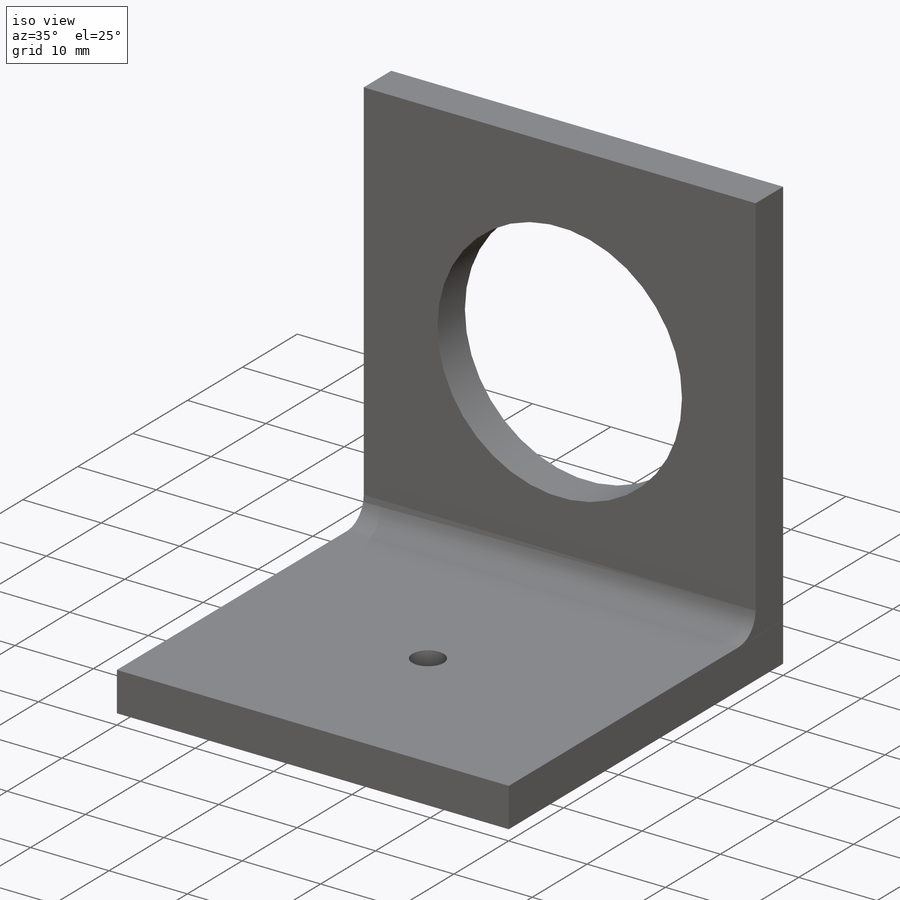
[diagram: iso view]
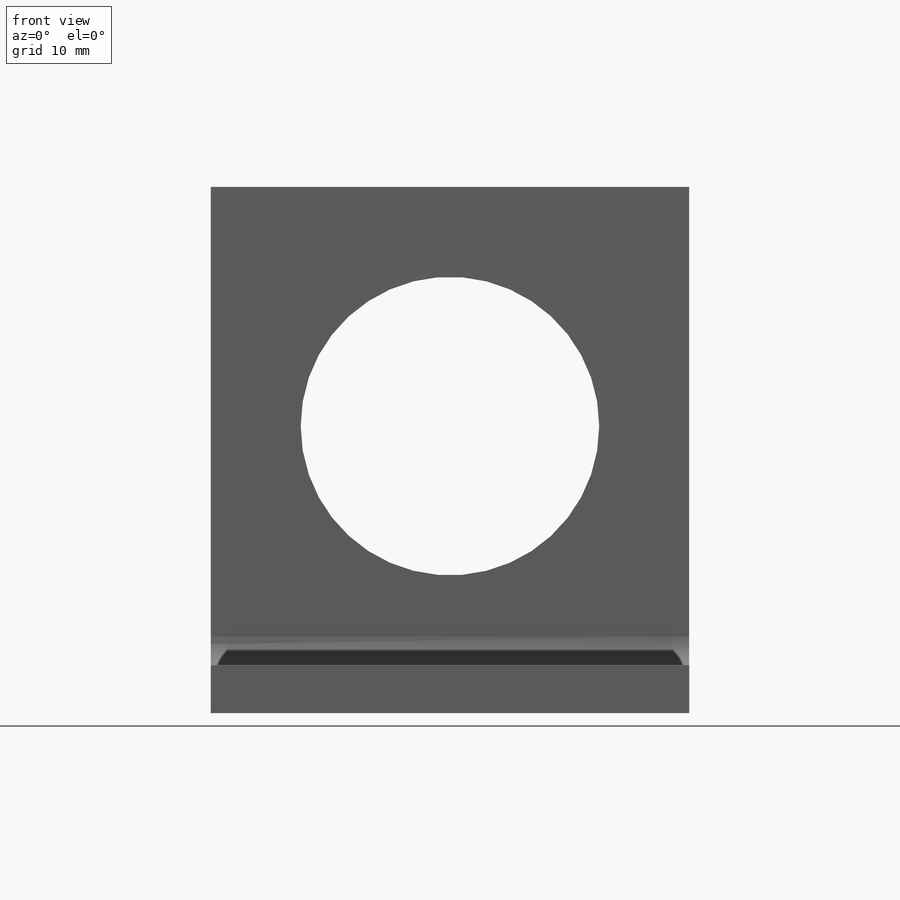
[diagram: front view]
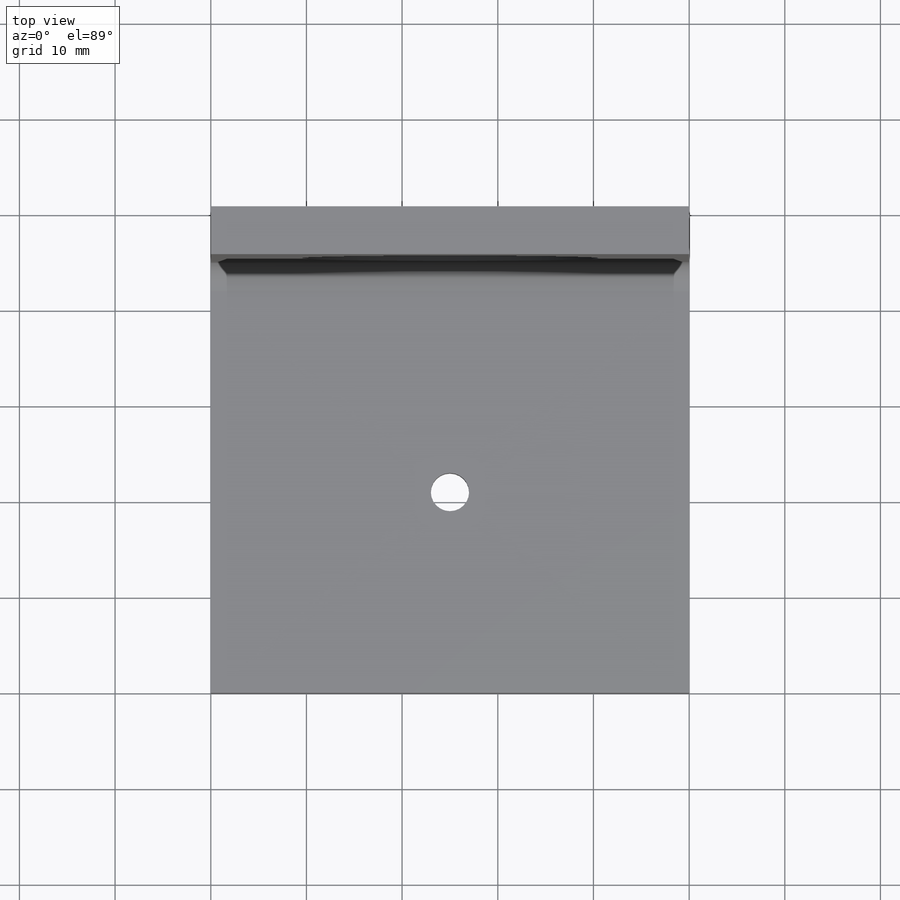
[diagram: top view]
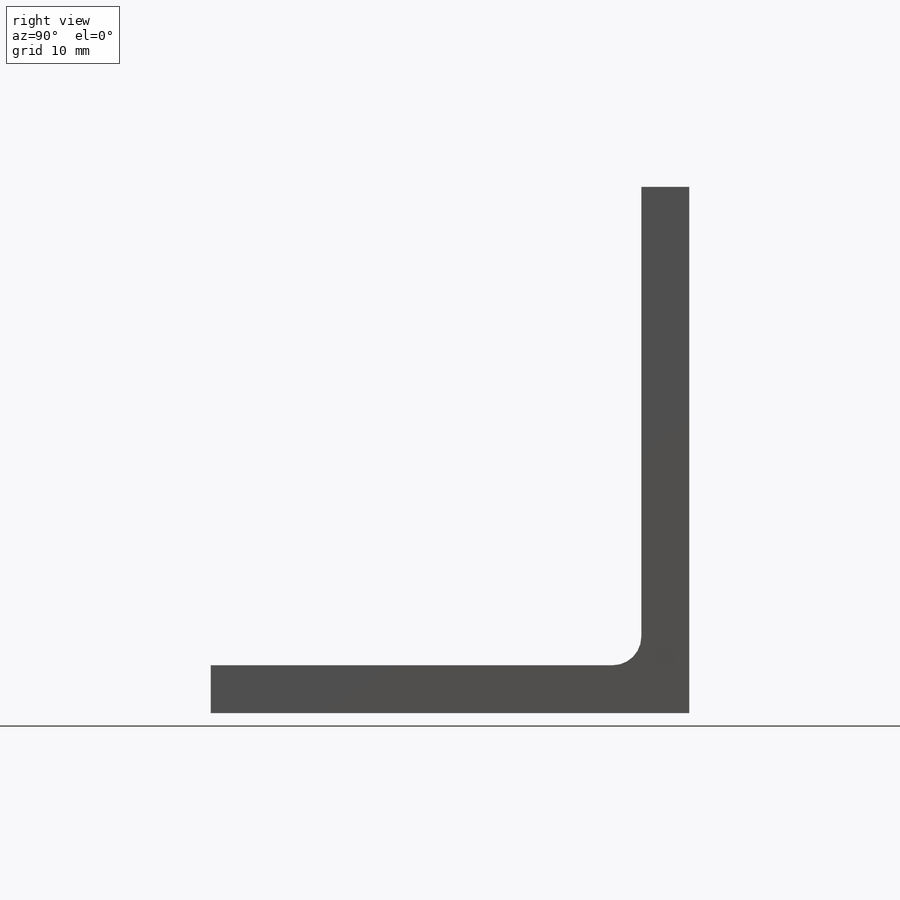
[diagram: right view]
SOLIDWORKS PART (.sldprt)
format: sldprt  version: not decoded by parser v0  size: 292,864 bytes
history: native  units: mm
features: sketch x4, plane x3, extrude x2, cut_extrude x2, material x1, fillet x1 (+10 scaffold rows collapsed)
feature tree (23):
  scaffold x10  (default folders/planes/origin — collapsed)
  material  "Material <não especificado>"
  plane  "Plano frontal"
  plane  "Plano superior"
  plane  "Plano direito"
  sketch  "Esboço1"  dims[D1=50.0mm D2=50.0mm]
  extrude  "Ressalto-extrusão1"  Depth=5mm
  sketch  "Esboço2"  dims[D1=31.2mm]
  cut_extrude  "Corte-extrusão1"  Depth=8mm
  sketch  "Esboço3"  dims[D1=5.0mm]
  extrude  "Ressalto-extrusão2"  Depth=50mm
  fillet  "Filete1"  Radius=3mm
  sketch  "Esboço5"  dims[D1=4.0mm]
  cut_extrude  "Corte-extrusão4"  Depth=14mm
decode coverage: 9 of 9 modeling features carry decoded parameters
note: suppression state not decoded; provenance and decode notes live in map.json
